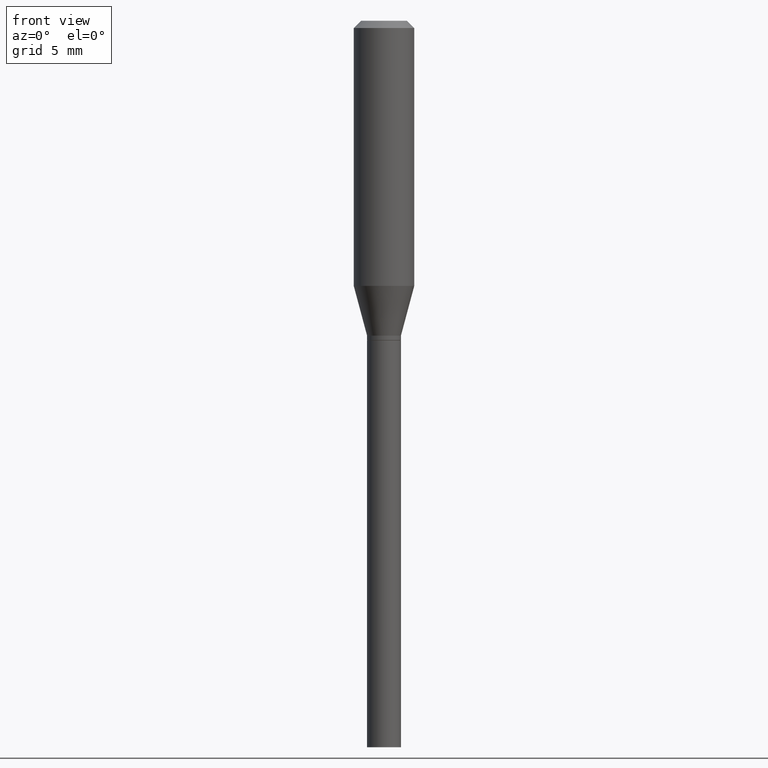
[diagram: clean part render]
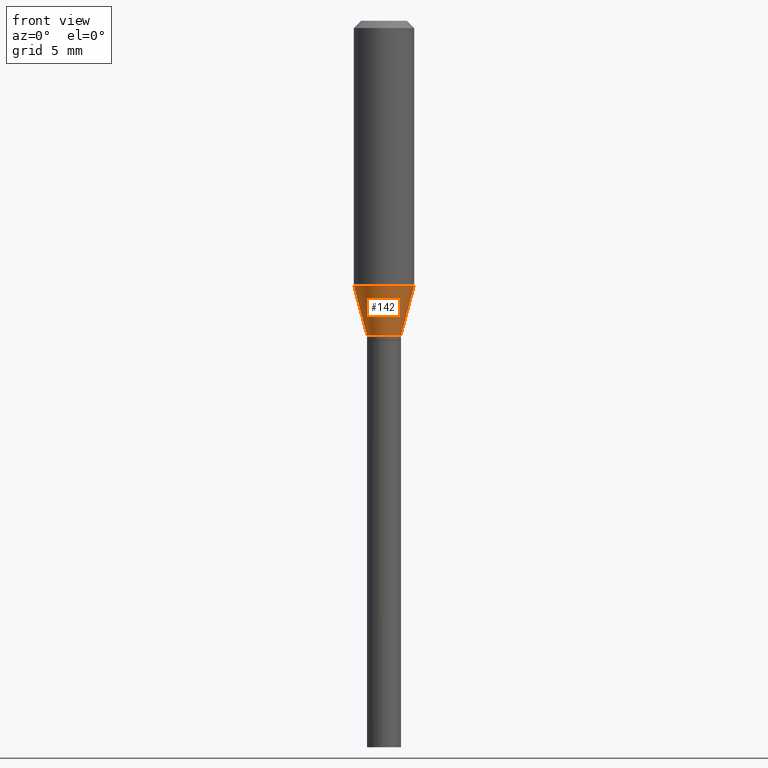
[diagram: same view with one face highlighted and labeled with its STEP entity id]
A machine part, front view. The second image highlights one B-rep face of the part: STEP entity #142.
In plain terms, the highlighted conical surface has half-angle 15 deg.
Its self-contained STEP definition (entity closure, byte-faithful):
#2 = VERTEX_POINT ( 'NONE', #246 ) ;
#21 = ORIENTED_EDGE ( 'NONE', *, *, #312, .F. ) ;
#25 = AXIS2_PLACEMENT_3D ( 'NONE', #169, #67, #395 ) ;
#46 = CARTESIAN_POINT ( 'NONE',  ( -0.03500000000000020456, -1.743905482499180370E-15, -0.6500000000000001332 ) ) ;
#65 = DIRECTION ( 'NONE',  ( 1.000000000000000000, -6.982962677686266711E-15, 0.000000000000000000 ) ) ;
#67 = DIRECTION ( 'NONE',  ( -2.445468806185136597E-29, 3.491481338843145583E-15, 1.000000000000000000 ) ) ;
#77 = VECTOR ( 'NONE', #400, 39.37007874015748143 ) ;
#81 = CARTESIAN_POINT ( 'NONE',  ( 1.589554724020339236E-29, -2.269462870248044964E-15, -0.6500000000000001332 ) ) ;
#82 = VECTOR ( 'NONE', #86, 39.37007874015748143 ) ;
#86 = DIRECTION ( 'NONE',  ( -0.2588190451025215721, 5.211531920934551831E-15, 0.9659258262890679791 ) ) ;
#92 = CONICAL_SURFACE ( 'NONE', #296, 0.03500000000000020456, 0.2617993877991502960 ) ;
#98 = VERTEX_POINT ( 'NONE', #105 ) ;
#99 = CARTESIAN_POINT ( 'NONE',  ( 1.338572843612629275E-29, -1.911127262116415256E-15, -0.5473686027918571728 ) ) ;
#101 = ORIENTED_EDGE ( 'NONE', *, *, #449, .T. ) ;
#105 = CARTESIAN_POINT ( 'NONE',  ( 0.03500000000000020456, -2.513866563967065719E-15, -0.6500000000000001332 ) ) ;
#132 = EDGE_CURVE ( 'NONE', #300, #2, #410, .T. ) ;
#139 = ORIENTED_EDGE ( 'NONE', *, *, #132, .F. ) ;
#142 = ADVANCED_FACE ( 'NONE', ( #190 ), #92, .T. ) ;
#156 = CARTESIAN_POINT ( 'NONE',  ( -0.03500000000000020456, -2.020772912732008495E-15, -0.6500000000000001332 ) ) ;
#169 = CARTESIAN_POINT ( 'NONE',  ( 1.589554724020339236E-29, -2.269462870248044964E-15, -0.6500000000000001332 ) ) ;
#179 = EDGE_LOOP ( 'NONE', ( #21, #463, #101, #139 ) ) ;
#190 = FACE_OUTER_BOUND ( 'NONE', #179, .T. ) ;
#202 = AXIS2_PLACEMENT_3D ( 'NONE', #99, #394, #65 ) ;
#211 = CARTESIAN_POINT ( 'NONE',  ( 0.03500000000000020456, -2.513866563967065719E-15, -0.6500000000000001332 ) ) ;
#236 = CIRCLE ( 'NONE', #25, 0.03500000000000020456 ) ;
#246 = CARTESIAN_POINT ( 'NONE',  ( 0.06250000000000000000, -2.347562429471806531E-15, -0.5473686027918571728 ) ) ;
#263 = DIRECTION ( 'NONE',  ( 1.000000000000000000, -6.982962677686263555E-15, 0.000000000000000000 ) ) ;
#266 = VERTEX_POINT ( 'NONE', #46 ) ;
#296 = AXIS2_PLACEMENT_3D ( 'NONE', #81, #338, #263 ) ;
#300 = VERTEX_POINT ( 'NONE', #414 ) ;
#312 = EDGE_CURVE ( 'NONE', #266, #300, #417, .T. ) ;
#338 = DIRECTION ( 'NONE',  ( -2.445468806185136597E-29, 3.491481338843145583E-15, 1.000000000000000000 ) ) ;
#359 = EDGE_CURVE ( 'NONE', #266, #98, #236, .T. ) ;
#394 = DIRECTION ( 'NONE',  ( -2.445468806185136597E-29, 3.491481338843145583E-15, 1.000000000000000000 ) ) ;
#395 = DIRECTION ( 'NONE',  ( 1.000000000000000000, -6.982962677686263555E-15, 0.000000000000000000 ) ) ;
#400 = DIRECTION ( 'NONE',  ( 0.2588190451025215721, 1.565188264969619995E-15, 0.9659258262890679791 ) ) ;
#410 = CIRCLE ( 'NONE', #202, 0.06250000000000000000 ) ;
#414 = CARTESIAN_POINT ( 'NONE',  ( -0.06250000000000000000, -1.467038052266352442E-15, -0.5473686027918571728 ) ) ;
#417 = LINE ( 'NONE', #156, #82 ) ;
#449 = EDGE_CURVE ( 'NONE', #98, #2, #457, .T. ) ;
#457 = LINE ( 'NONE', #211, #77 ) ;
#463 = ORIENTED_EDGE ( 'NONE', *, *, #359, .T. ) ;